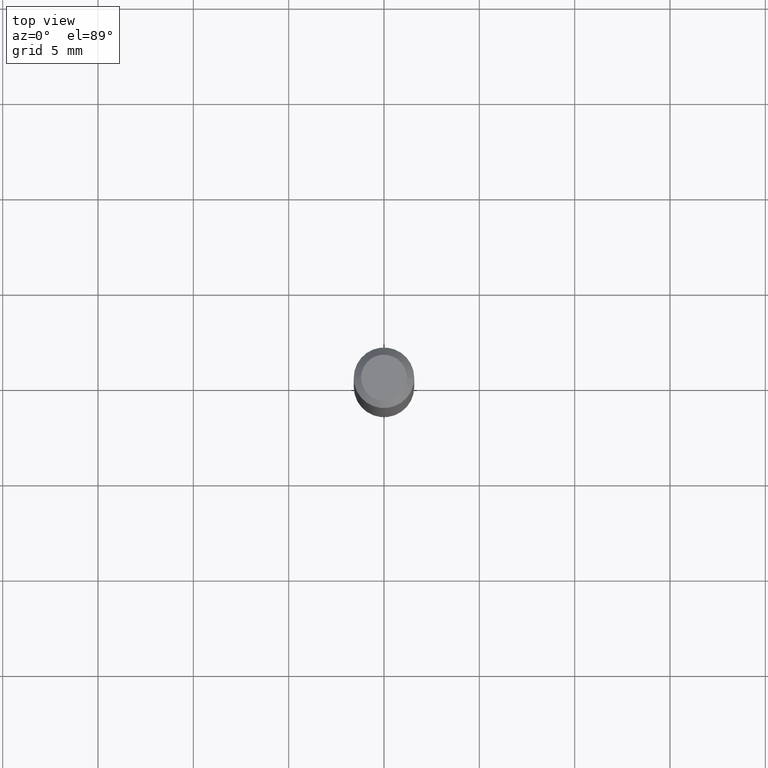
[diagram: clean part render]
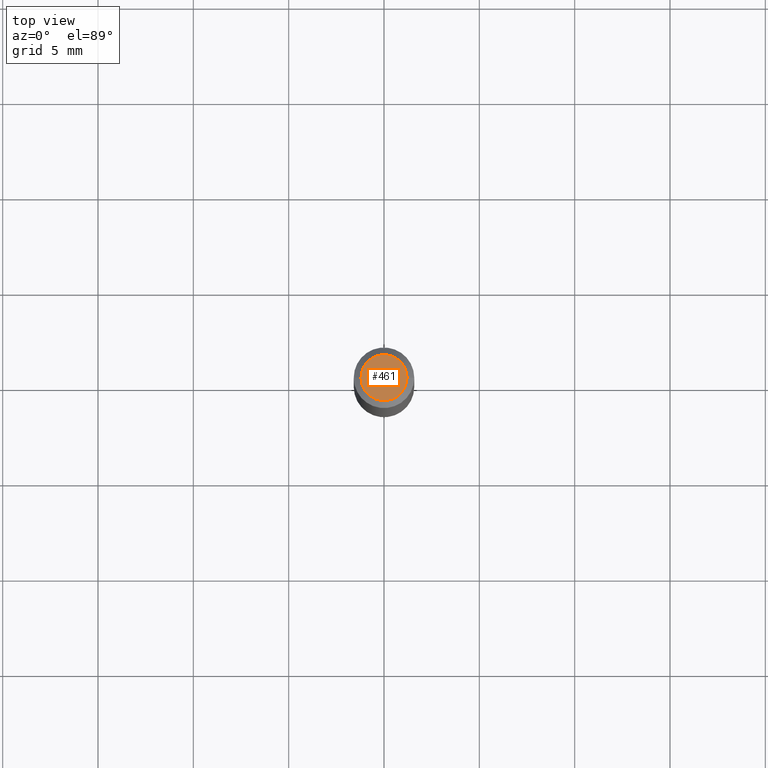
[diagram: same view with one face highlighted and labeled with its STEP entity id]
A machine part, top view. The second image highlights one B-rep face of the part: STEP entity #461.
In plain terms, the highlighted planar face has unit normal (0, -0, -1).
Its self-contained STEP definition (entity closure, byte-faithful):
#3 = PLANE ( 'NONE',  #339 ) ;
#4 = VERTEX_POINT ( 'NONE', #454 ) ;
#5 = CARTESIAN_POINT ( 'NONE',  ( 3.316907271900976096E-16, 0.04749999999999999362, -4.396022119312972362E-16 ) ) ;
#18 = ORIENTED_EDGE ( 'NONE', *, *, #309, .T. ) ;
#28 = AXIS2_PLACEMENT_3D ( 'NONE', #251, #466, #72 ) ;
#40 = DIRECTION ( 'NONE',  ( -1.000000000000000000, 6.982962677686265922E-15, -4.876176775795935793E-29 ) ) ;
#72 = DIRECTION ( 'NONE',  ( 1.000000000000000000, -6.982962677686267499E-15, 4.852736867747366768E-29 ) ) ;
#86 = DIRECTION ( 'NONE',  ( -2.445468806185136597E-29, 3.491481338843145583E-15, 1.000000000000000000 ) ) ;
#105 = CARTESIAN_POINT ( 'NONE',  ( 0.04749999999999999362, -4.035134999187587991E-16, -5.475136966724932144E-16 ) ) ;
#134 = CARTESIAN_POINT ( 'NONE',  ( 1.338927666171699122E-44, -1.911633854693045593E-30, -5.475136966724957782E-16 ) ) ;
#207 = DIRECTION ( 'NONE',  ( 1.000000000000000000, -6.982962677686267499E-15, 4.852736867747366768E-29 ) ) ;
#251 = CARTESIAN_POINT ( 'NONE',  ( 1.338927666171699122E-44, -1.911633854693045593E-30, -5.475136966724957782E-16 ) ) ;
#304 = AXIS2_PLACEMENT_3D ( 'NONE', #134, #86, #207 ) ;
#309 = EDGE_CURVE ( 'NONE', #4, #323, #401, .T. ) ;
#323 = VERTEX_POINT ( 'NONE', #105 ) ;
#328 = DIRECTION ( 'NONE',  ( 2.438088387897960049E-29, -3.491481338843145188E-15, -1.000000000000000000 ) ) ;
#339 = AXIS2_PLACEMENT_3D ( 'NONE', #5, #328, #40 ) ;
#353 = ORIENTED_EDGE ( 'NONE', *, *, #359, .T. ) ;
#359 = EDGE_CURVE ( 'NONE', #323, #4, #374, .T. ) ;
#374 = CIRCLE ( 'NONE', #304, 0.04749999999999999362 ) ;
#401 = CIRCLE ( 'NONE', #28, 0.04749999999999999362 ) ;
#412 = EDGE_LOOP ( 'NONE', ( #18, #353 ) ) ;
#439 = FACE_OUTER_BOUND ( 'NONE', #412, .T. ) ;
#454 = CARTESIAN_POINT ( 'NONE',  ( -0.04749999999999999362, 3.578768372314200645E-16, -5.475136966724982434E-16 ) ) ;
#461 = ADVANCED_FACE ( 'NONE', ( #439 ), #3, .F. ) ;
#466 = DIRECTION ( 'NONE',  ( -2.445468806185136597E-29, 3.491481338843145583E-15, 1.000000000000000000 ) ) ;